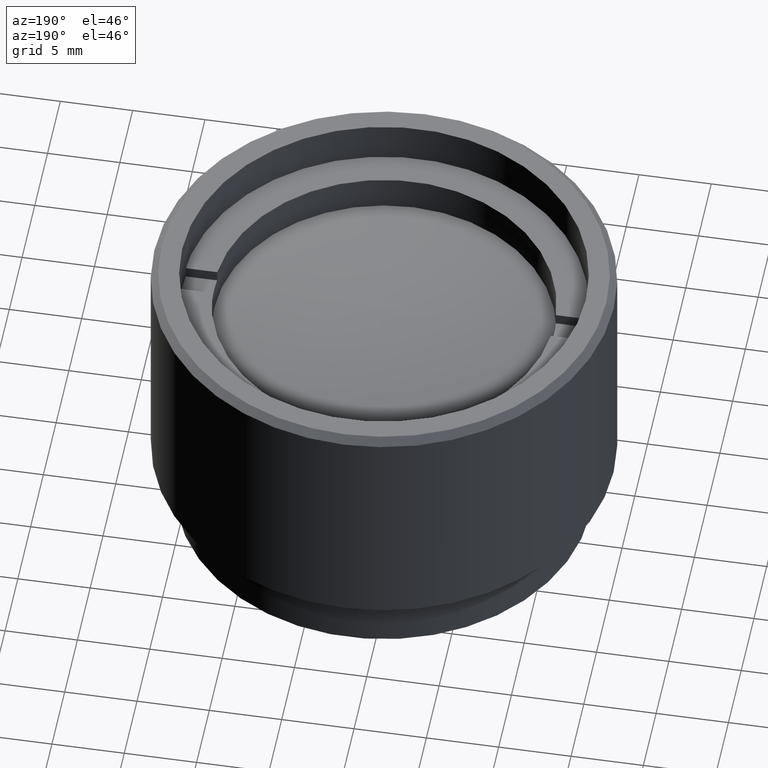
[diagram: clean part render]
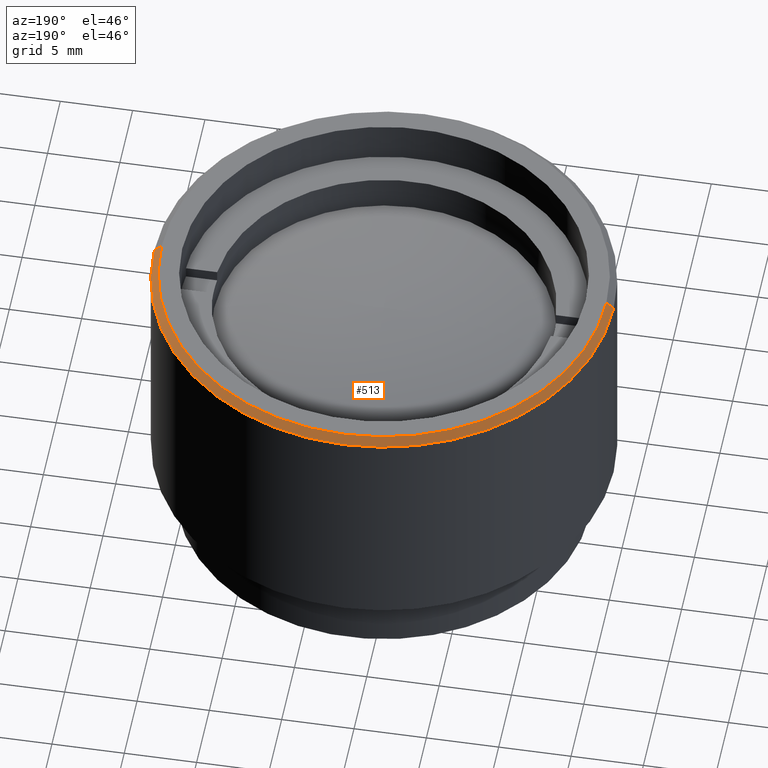
[diagram: same view with one face highlighted and labeled with its STEP entity id]
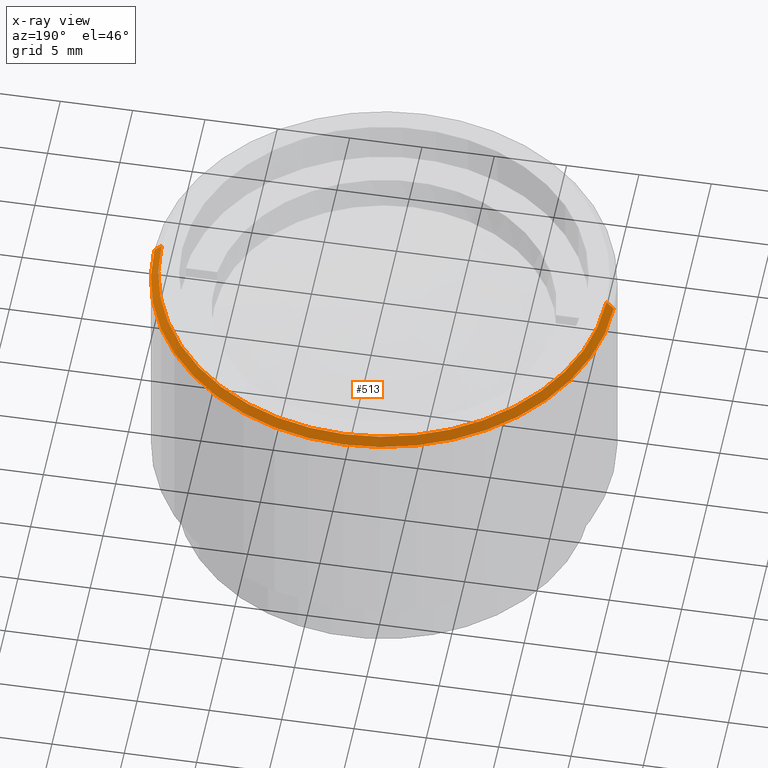
[diagram: x-ray of the same camera — body ghosted, the highlighted face saturated]
A machine part, auxiliary view. The second image highlights one B-rep face of the part: STEP entity #513.
The next image is the same camera in x-ray: the body ghosted, the highlighted face saturated — about 0% of this face is hidden behind the body in this view.
In plain terms, the highlighted conical surface has half-angle 45 deg.
Its self-contained STEP definition (entity closure, byte-faithful):
#76 = AXIS2_PLACEMENT_3D ( 'NONE', #237, #778, #1416 ) ;
#101 = ORIENTED_EDGE ( 'NONE', *, *, #475, .F. ) ;
#107 = VERTEX_POINT ( 'NONE', #564 ) ;
#140 = EDGE_LOOP ( 'NONE', ( #821, #1547, #1366, #101 ) ) ;
#143 = VERTEX_POINT ( 'NONE', #419 ) ;
#192 = VECTOR ( 'NONE', #508, 999.9999999999998863 ) ;
#213 = DIRECTION ( 'NONE',  ( -1.000000000000000000, 0.000000000000000000, 0.000000000000000000 ) ) ;
#237 = CARTESIAN_POINT ( 'NONE',  ( 0.000000000000000000, 0.000000000000000000, 21.50000000000000000 ) ) ;
#387 = DIRECTION ( 'NONE',  ( 0.000000000000000000, 0.000000000000000000, -1.000000000000000000 ) ) ;
#419 = CARTESIAN_POINT ( 'NONE',  ( 15.87800000000000011, 1.944494187686167431E-15, 20.99999999999999289 ) ) ;
#464 = EDGE_CURVE ( 'NONE', #881, #107, #527, .T. ) ;
#475 = EDGE_CURVE ( 'NONE', #107, #984, #1286, .T. ) ;
#508 = DIRECTION ( 'NONE',  ( -0.7071067811865376918, 0.000000000000000000, -0.7071067811865574537 ) ) ;
#513 = ADVANCED_FACE ( 'NONE', ( #1120 ), #755, .T. ) ;
#527 = CIRCLE ( 'NONE', #76, 15.37800000000000900 ) ;
#564 = CARTESIAN_POINT ( 'NONE',  ( -15.37800000000000900, 0.000000000000000000, 21.50000000000000000 ) ) ;
#620 = EDGE_CURVE ( 'NONE', #881, #143, #864, .T. ) ;
#755 = CONICAL_SURFACE ( 'NONE', #1650, 15.37800000000000900, 0.7853981633974344012 ) ;
#778 = DIRECTION ( 'NONE',  ( 0.000000000000000000, 0.000000000000000000, 1.000000000000000000 ) ) ;
#780 = VECTOR ( 'NONE', #1548, 999.9999999999998863 ) ;
#799 = CARTESIAN_POINT ( 'NONE',  ( 0.000000000000000000, 0.000000000000000000, 20.99999999999999289 ) ) ;
#821 = ORIENTED_EDGE ( 'NONE', *, *, #464, .F. ) ;
#826 = CARTESIAN_POINT ( 'NONE',  ( 15.37800000000000900, 1.913878017707484038E-15, 21.50000000000000000 ) ) ;
#864 = LINE ( 'NONE', #1023, #780 ) ;
#881 = VERTEX_POINT ( 'NONE', #826 ) ;
#984 = VERTEX_POINT ( 'NONE', #1087 ) ;
#1003 = CIRCLE ( 'NONE', #1129, 15.87800000000000011 ) ;
#1009 = DIRECTION ( 'NONE',  ( 0.000000000000000000, 0.000000000000000000, -1.000000000000000000 ) ) ;
#1023 = CARTESIAN_POINT ( 'NONE',  ( 15.37800000000000900, 1.883261847728801040E-15, 21.50000000000000000 ) ) ;
#1087 = CARTESIAN_POINT ( 'NONE',  ( -15.87800000000000011, 0.000000000000000000, 20.99999999999999289 ) ) ;
#1114 = EDGE_CURVE ( 'NONE', #984, #143, #1003, .T. ) ;
#1120 = FACE_OUTER_BOUND ( 'NONE', #140, .T. ) ;
#1129 = AXIS2_PLACEMENT_3D ( 'NONE', #799, #387, #1315 ) ;
#1286 = LINE ( 'NONE', #1676, #192 ) ;
#1315 = DIRECTION ( 'NONE',  ( 1.000000000000000000, 0.000000000000000000, 0.000000000000000000 ) ) ;
#1366 = ORIENTED_EDGE ( 'NONE', *, *, #1114, .F. ) ;
#1397 = CARTESIAN_POINT ( 'NONE',  ( 0.000000000000000000, 0.000000000000000000, 21.50000000000000000 ) ) ;
#1416 = DIRECTION ( 'NONE',  ( 1.000000000000000000, 0.000000000000000000, 0.000000000000000000 ) ) ;
#1547 = ORIENTED_EDGE ( 'NONE', *, *, #620, .T. ) ;
#1548 = DIRECTION ( 'NONE',  ( 0.7071067811865376918, 8.659560562354813296E-17, -0.7071067811865574537 ) ) ;
#1650 = AXIS2_PLACEMENT_3D ( 'NONE', #1397, #1009, #213 ) ;
#1676 = CARTESIAN_POINT ( 'NONE',  ( -15.37800000000000900, 0.000000000000000000, 21.50000000000000000 ) ) ;